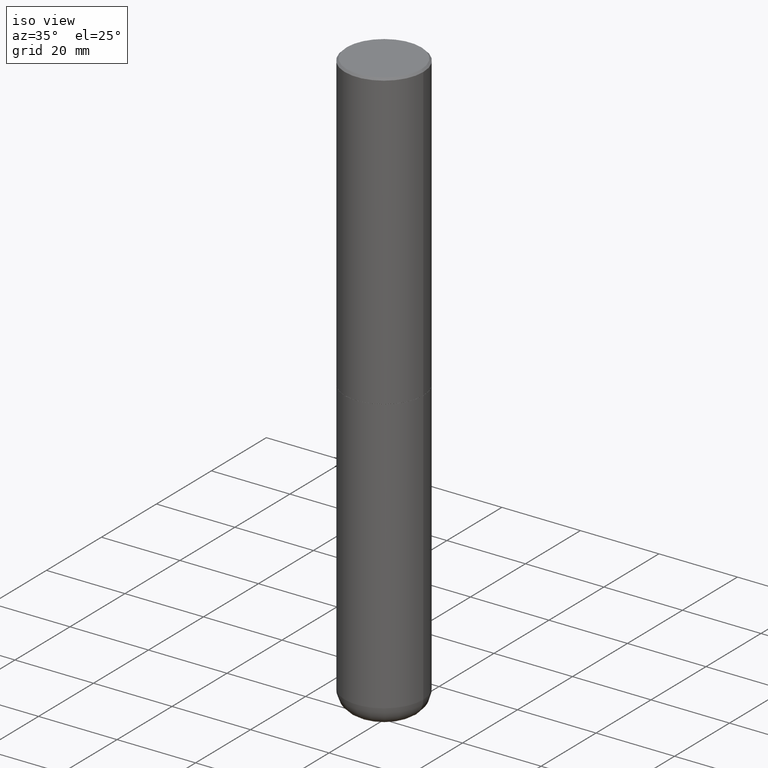
[diagram: clean part render]
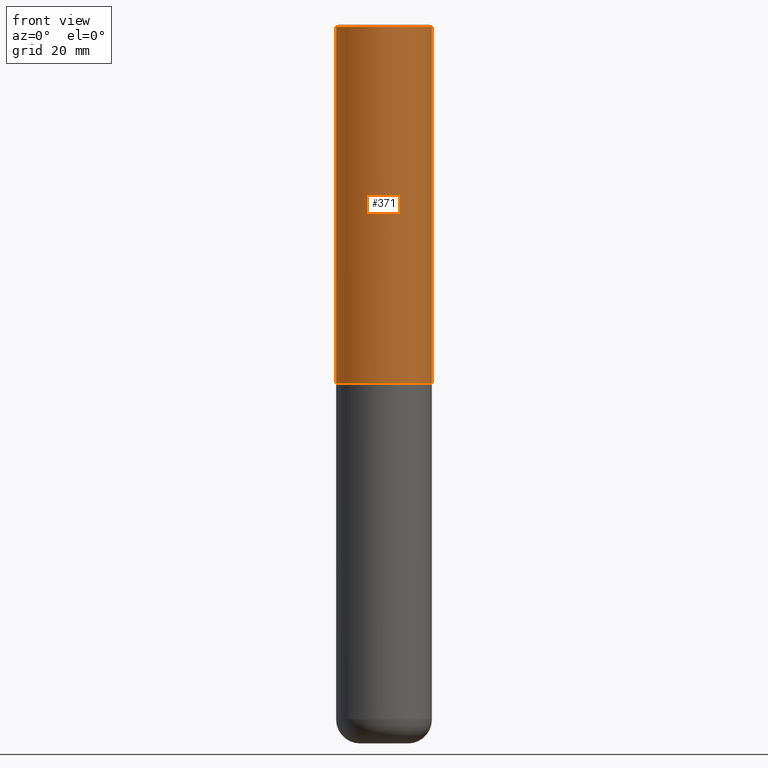
[diagram: tour spotlight — one face highlighted and labeled with its STEP entity id]
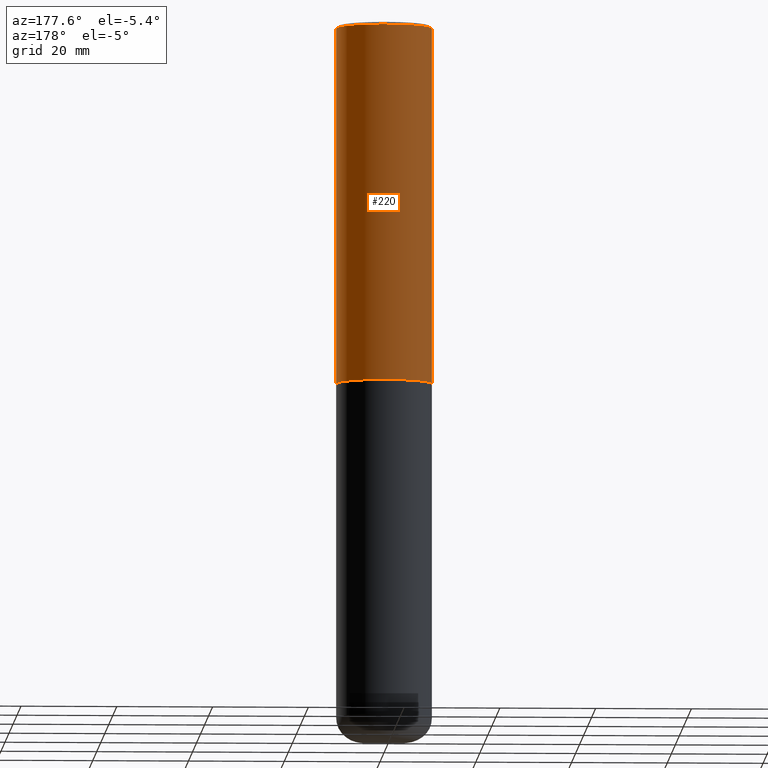
[diagram: tour spotlight — one face highlighted and labeled with its STEP entity id]
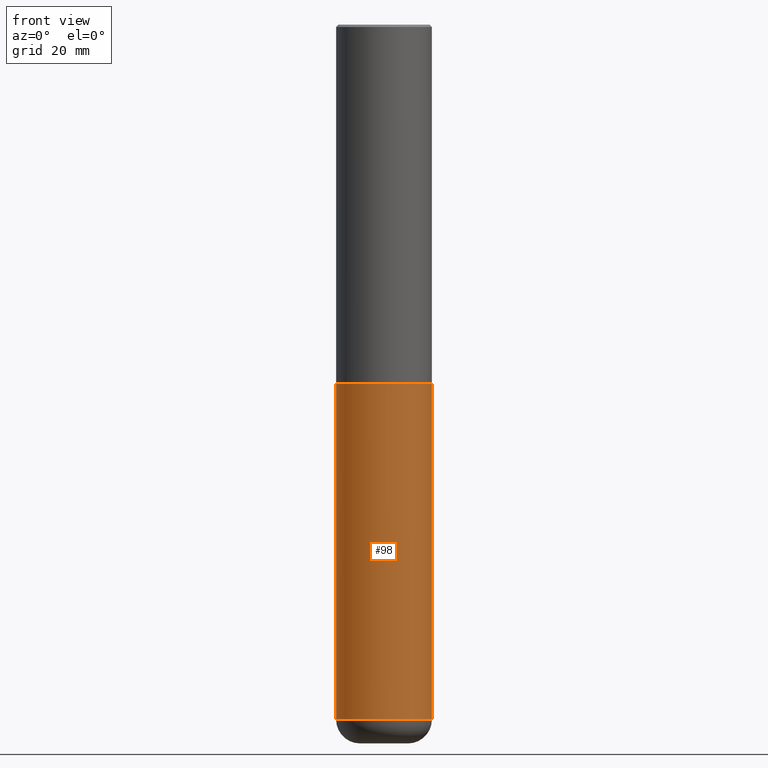
[diagram: tour spotlight — one face highlighted and labeled with its STEP entity id]
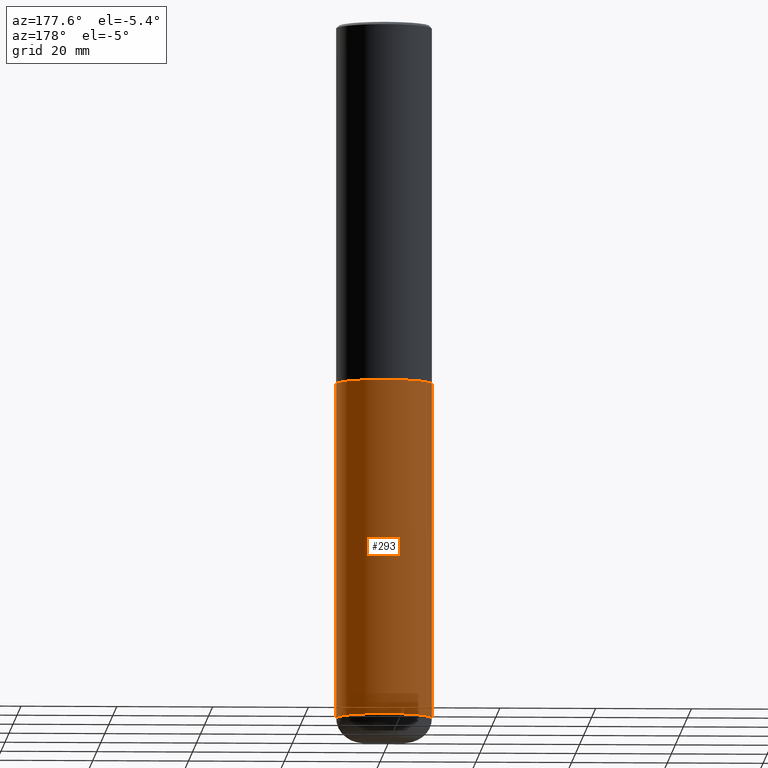
[diagram: tour spotlight — one face highlighted and labeled with its STEP entity id]
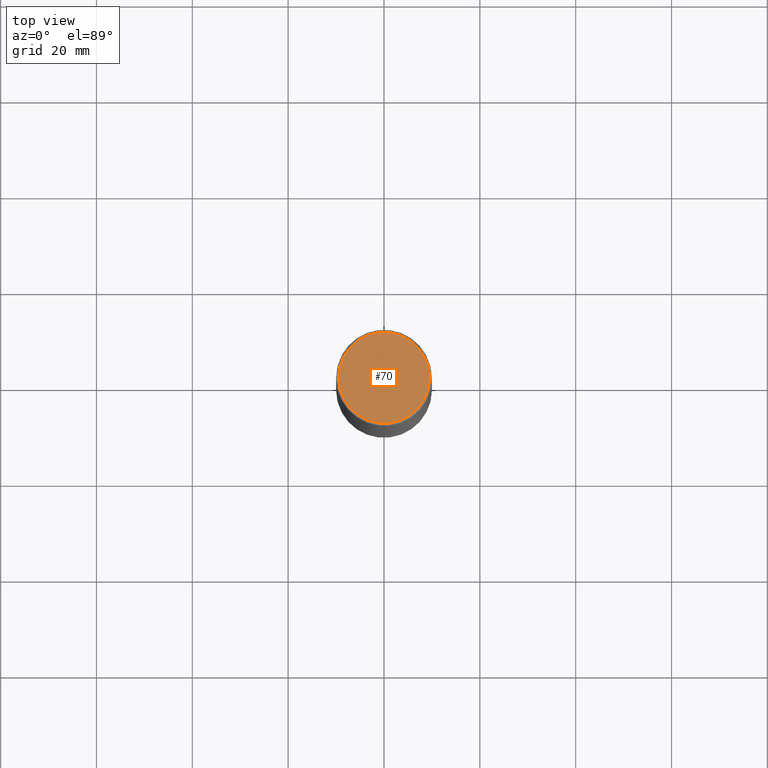
[diagram: tour spotlight — one face highlighted and labeled with its STEP entity id]
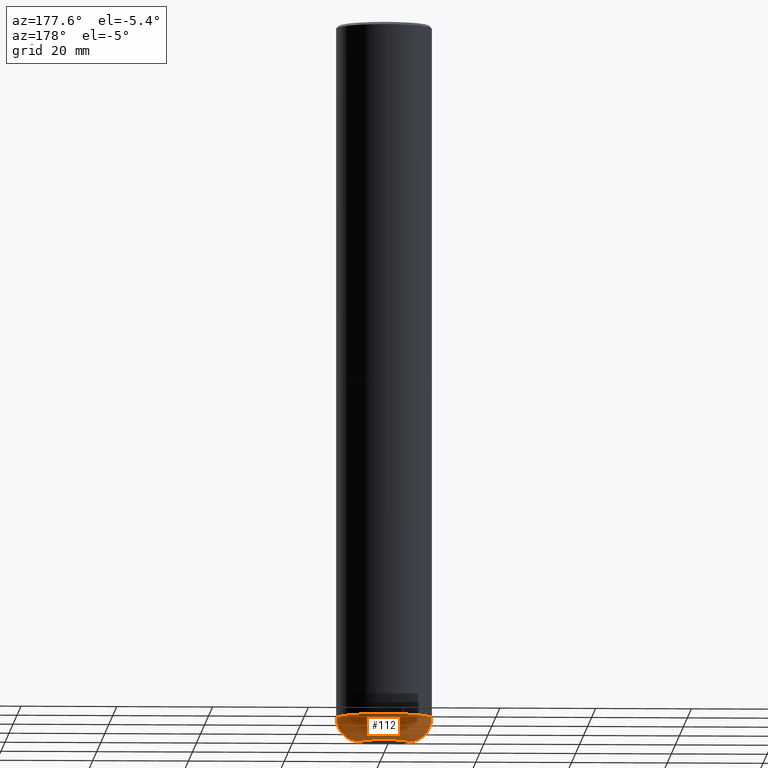
[diagram: tour spotlight — one face highlighted and labeled with its STEP entity id]
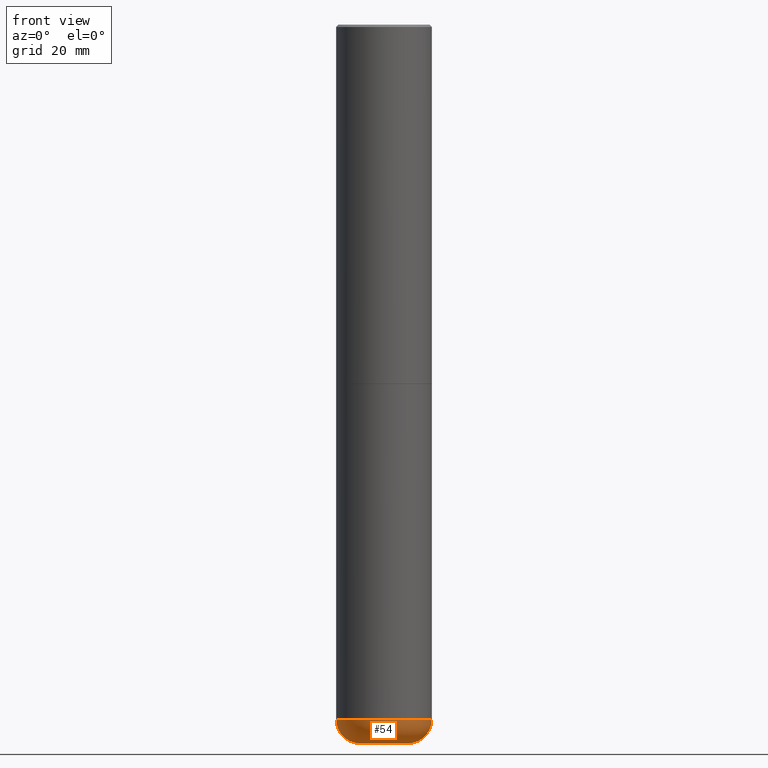
[diagram: tour spotlight — one face highlighted and labeled with its STEP entity id]
A machine part: a face-by-face anatomy tour. The part has 14 B-rep faces; the first image is the clean iso view, then the 7 largest visible faces are spotlighted one at a time (largest first), each with its STEP entity span.

Face 1 — front view, entity #371. In plain terms, the highlighted cylindrical surface (partial cylindrical patch) has radius 10 mm, axis along (-0, 0, 1).
Definition (entity closure, byte-faithful):
#7 = CARTESIAN_POINT ( 'NONE',  ( 4.890937612370294178E-31, -6.982962677686321191E-17, -0.02000000000000008715 ) ) ;
#27 = AXIS2_PLACEMENT_3D ( 'NONE', #106, #74, #196 ) ;
#34 = EDGE_CURVE ( 'NONE', #386, #347, #173, .T. ) ;
#35 = CARTESIAN_POINT ( 'NONE',  ( -0.3937000000000004385, -2.390410796632568923E-15, -2.951700000000000212 ) ) ;
#60 = DIRECTION ( 'NONE',  ( 1.000000000000000000, -6.982962677686265922E-15, 0.000000000000000000 ) ) ;
#74 = DIRECTION ( 'NONE',  ( -2.445468806185136597E-29, 3.491481338843145583E-15, 1.000000000000000000 ) ) ;
#86 = AXIS2_PLACEMENT_3D ( 'NONE', #221, #350, #60 ) ;
#100 = DIRECTION ( 'NONE',  ( 1.000000000000000000, -6.982962677686266711E-15, 0.000000000000000000 ) ) ;
#102 = CARTESIAN_POINT ( 'NONE',  ( 0.3937000000000004385, -1.305499787406839996E-14, -2.951700000000000212 ) ) ;
#103 = VECTOR ( 'NONE', #357, 39.37007874015748143 ) ;
#106 = CARTESIAN_POINT ( 'NONE',  ( 0.000000000000000000, 0.000000000000000000, 0.000000000000000000 ) ) ;
#122 = EDGE_CURVE ( 'NONE', #247, #375, #355, .T. ) ;
#129 = ORIENTED_EDGE ( 'NONE', *, *, #353, .T. ) ;
#137 = DIRECTION ( 'NONE',  ( -2.445468806185136597E-29, 3.491481338843145583E-15, 1.000000000000000000 ) ) ;
#173 = CIRCLE ( 'NONE', #86, 0.3937000000000004385 ) ;
#196 = DIRECTION ( 'NONE',  ( 1.000000000000000000, -6.982962677686266711E-15, 4.876176775795935793E-29 ) ) ;
#200 = CARTESIAN_POINT ( 'NONE',  ( 0.3937000000000001054, -2.770807688499516128E-15, -0.02000000000000008715 ) ) ;
#204 = CARTESIAN_POINT ( 'NONE',  ( -0.3937000000000002164, 2.797406750687515970E-15, -1.936584745033357576E-29 ) ) ;
#221 = CARTESIAN_POINT ( 'NONE',  ( 7.218290275216666916E-29, -1.030580546786331359E-14, -2.951700000000000212 ) ) ;
#233 = CYLINDRICAL_SURFACE ( 'NONE', #27, 0.3937000000000002164 ) ;
#247 = VERTEX_POINT ( 'NONE', #253 ) ;
#253 = CARTESIAN_POINT ( 'NONE',  ( -0.3937000000000001054, 2.679362779428220707E-15, -0.02000000000000008715 ) ) ;
#258 = EDGE_LOOP ( 'NONE', ( #380, #310, #129, #339 ) ) ;
#259 = CARTESIAN_POINT ( 'NONE',  ( 0.3937000000000002164, -2.749192406205084794E-15, 1.919750796630861012E-29 ) ) ;
#294 = LINE ( 'NONE', #204, #395 ) ;
#296 = AXIS2_PLACEMENT_3D ( 'NONE', #7, #137, #100 ) ;
#302 = LINE ( 'NONE', #259, #103 ) ;
#310 = ORIENTED_EDGE ( 'NONE', *, *, #34, .T. ) ;
#339 = ORIENTED_EDGE ( 'NONE', *, *, #122, .F. ) ;
#347 = VERTEX_POINT ( 'NONE', #102 ) ;
#350 = DIRECTION ( 'NONE',  ( -2.445468806185136597E-29, 3.491481338843145583E-15, 1.000000000000000000 ) ) ;
#353 = EDGE_CURVE ( 'NONE', #347, #375, #302, .T. ) ;
#355 = CIRCLE ( 'NONE', #296, 0.3937000000000001054 ) ;
#357 = DIRECTION ( 'NONE',  ( -2.445468806185136877E-29, 3.491481338843145188E-15, 1.000000000000000000 ) ) ;
#359 = DIRECTION ( 'NONE',  ( -2.445468806185136877E-29, 3.491481338843145188E-15, 1.000000000000000000 ) ) ;
#366 = EDGE_CURVE ( 'NONE', #386, #247, #294, .T. ) ;
#371 = ADVANCED_FACE ( 'NONE', ( #417 ), #233, .T. ) ;
#375 = VERTEX_POINT ( 'NONE', #200 ) ;
#380 = ORIENTED_EDGE ( 'NONE', *, *, #366, .F. ) ;
#386 = VERTEX_POINT ( 'NONE', #35 ) ;
#395 = VECTOR ( 'NONE', #359, 39.37007874015748143 ) ;
#417 = FACE_OUTER_BOUND ( 'NONE', #258, .T. ) ;

Face 2 — auxiliary view, entity #220. In plain terms, the highlighted cylindrical surface (partial cylindrical patch) has radius 10 mm, axis along (-0, 0, 1).
Definition (entity closure, byte-faithful):
#3 = AXIS2_PLACEMENT_3D ( 'NONE', #223, #257, #121 ) ;
#4 = DIRECTION ( 'NONE',  ( -2.445468806185136597E-29, 3.491481338843145583E-15, 1.000000000000000000 ) ) ;
#10 = AXIS2_PLACEMENT_3D ( 'NONE', #318, #384, #125 ) ;
#35 = CARTESIAN_POINT ( 'NONE',  ( -0.3937000000000004385, -2.390410796632568923E-15, -2.951700000000000212 ) ) ;
#38 = EDGE_CURVE ( 'NONE', #375, #247, #323, .T. ) ;
#51 = ORIENTED_EDGE ( 'NONE', *, *, #246, .T. ) ;
#90 = AXIS2_PLACEMENT_3D ( 'NONE', #300, #4, #109 ) ;
#102 = CARTESIAN_POINT ( 'NONE',  ( 0.3937000000000004385, -1.305499787406839996E-14, -2.951700000000000212 ) ) ;
#103 = VECTOR ( 'NONE', #357, 39.37007874015748143 ) ;
#109 = DIRECTION ( 'NONE',  ( 1.000000000000000000, -6.982962677686266711E-15, 4.876176775795935793E-29 ) ) ;
#121 = DIRECTION ( 'NONE',  ( 1.000000000000000000, -6.982962677686265922E-15, 0.000000000000000000 ) ) ;
#125 = DIRECTION ( 'NONE',  ( 1.000000000000000000, -6.982962677686266711E-15, 0.000000000000000000 ) ) ;
#174 = CYLINDRICAL_SURFACE ( 'NONE', #90, 0.3937000000000002164 ) ;
#197 = ORIENTED_EDGE ( 'NONE', *, *, #38, .F. ) ;
#200 = CARTESIAN_POINT ( 'NONE',  ( 0.3937000000000001054, -2.770807688499516128E-15, -0.02000000000000008715 ) ) ;
#202 = CIRCLE ( 'NONE', #3, 0.3937000000000004385 ) ;
#204 = CARTESIAN_POINT ( 'NONE',  ( -0.3937000000000002164, 2.797406750687515970E-15, -1.936584745033357576E-29 ) ) ;
#220 = ADVANCED_FACE ( 'NONE', ( #329 ), #174, .T. ) ;
#223 = CARTESIAN_POINT ( 'NONE',  ( 7.218290275216666916E-29, -1.030580546786331359E-14, -2.951700000000000212 ) ) ;
#227 = ORIENTED_EDGE ( 'NONE', *, *, #366, .T. ) ;
#246 = EDGE_CURVE ( 'NONE', #347, #386, #202, .T. ) ;
#247 = VERTEX_POINT ( 'NONE', #253 ) ;
#253 = CARTESIAN_POINT ( 'NONE',  ( -0.3937000000000001054, 2.679362779428220707E-15, -0.02000000000000008715 ) ) ;
#257 = DIRECTION ( 'NONE',  ( -2.445468806185136597E-29, 3.491481338843145583E-15, 1.000000000000000000 ) ) ;
#259 = CARTESIAN_POINT ( 'NONE',  ( 0.3937000000000002164, -2.749192406205084794E-15, 1.919750796630861012E-29 ) ) ;
#275 = ORIENTED_EDGE ( 'NONE', *, *, #353, .F. ) ;
#294 = LINE ( 'NONE', #204, #395 ) ;
#300 = CARTESIAN_POINT ( 'NONE',  ( 0.000000000000000000, 0.000000000000000000, 0.000000000000000000 ) ) ;
#302 = LINE ( 'NONE', #259, #103 ) ;
#318 = CARTESIAN_POINT ( 'NONE',  ( 4.890937612370294178E-31, -6.982962677686321191E-17, -0.02000000000000008715 ) ) ;
#323 = CIRCLE ( 'NONE', #10, 0.3937000000000001054 ) ;
#329 = FACE_OUTER_BOUND ( 'NONE', #373, .T. ) ;
#347 = VERTEX_POINT ( 'NONE', #102 ) ;
#353 = EDGE_CURVE ( 'NONE', #347, #375, #302, .T. ) ;
#357 = DIRECTION ( 'NONE',  ( -2.445468806185136877E-29, 3.491481338843145188E-15, 1.000000000000000000 ) ) ;
#359 = DIRECTION ( 'NONE',  ( -2.445468806185136877E-29, 3.491481338843145188E-15, 1.000000000000000000 ) ) ;
#366 = EDGE_CURVE ( 'NONE', #386, #247, #294, .T. ) ;
#373 = EDGE_LOOP ( 'NONE', ( #51, #227, #197, #275 ) ) ;
#375 = VERTEX_POINT ( 'NONE', #200 ) ;
#384 = DIRECTION ( 'NONE',  ( -2.445468806185136597E-29, 3.491481338843145583E-15, 1.000000000000000000 ) ) ;
#386 = VERTEX_POINT ( 'NONE', #35 ) ;
#395 = VECTOR ( 'NONE', #359, 39.37007874015748143 ) ;

Face 3 — front view, entity #98. In plain terms, the highlighted cylindrical surface (partial cylindrical patch) has radius 10 mm, axis along (-0, 0, 1).
Definition (entity closure, byte-faithful):
#8 = CARTESIAN_POINT ( 'NONE',  ( -0.3937000000000000499, -1.232297690937355006E-14, -2.952700000000000102 ) ) ;
#24 = VERTEX_POINT ( 'NONE', #250 ) ;
#25 = DIRECTION ( 'NONE',  ( 1.000000000000000000, -6.982962677686267499E-15, 0.000000000000000000 ) ) ;
#26 = ORIENTED_EDGE ( 'NONE', *, *, #175, .T. ) ;
#33 = CARTESIAN_POINT ( 'NONE',  ( -0.3937000000000004385, -1.713406362023246068E-14, -5.708599999999999675 ) ) ;
#40 = CARTESIAN_POINT ( 'NONE',  ( 1.396020322698846851E-28, -1.993147037091997783E-14, -5.708599999999999675 ) ) ;
#45 = DIRECTION ( 'NONE',  ( -2.445468806185136597E-29, 3.491481338843145583E-15, 1.000000000000000000 ) ) ;
#76 = FACE_OUTER_BOUND ( 'NONE', #120, .T. ) ;
#98 = ADVANCED_FACE ( 'NONE', ( #76 ), #234, .T. ) ;
#113 = DIRECTION ( 'NONE',  ( -2.445468806185136877E-29, 3.491481338843145188E-15, 1.000000000000000000 ) ) ;
#120 = EDGE_LOOP ( 'NONE', ( #307, #26, #341, #325 ) ) ;
#132 = AXIS2_PLACEMENT_3D ( 'NONE', #208, #45, #272 ) ;
#141 = CARTESIAN_POINT ( 'NONE',  ( 0.3937000000000001054, -2.749192406205084005E-15, 1.919750796630860452E-29 ) ) ;
#153 = LINE ( 'NONE', #274, #190 ) ;
#161 = CARTESIAN_POINT ( 'NONE',  ( 7.220735744022852519E-29, -1.030929694920215502E-14, -2.952700000000000102 ) ) ;
#165 = VECTOR ( 'NONE', #198, 39.37007874015748143 ) ;
#169 = VERTEX_POINT ( 'NONE', #33 ) ;
#170 = DIRECTION ( 'NONE',  ( -2.445468806185136597E-29, 3.491481338843145583E-15, 1.000000000000000000 ) ) ;
#175 = EDGE_CURVE ( 'NONE', #169, #24, #316, .T. ) ;
#190 = VECTOR ( 'NONE', #113, 39.37007874015748143 ) ;
#198 = DIRECTION ( 'NONE',  ( -2.445468806185136877E-29, 3.491481338843145188E-15, 1.000000000000000000 ) ) ;
#208 = CARTESIAN_POINT ( 'NONE',  ( 0.000000000000000000, 0.000000000000000000, 0.000000000000000000 ) ) ;
#229 = EDGE_CURVE ( 'NONE', #169, #352, #153, .T. ) ;
#234 = CYLINDRICAL_SURFACE ( 'NONE', #132, 0.3937000000000001054 ) ;
#236 = LINE ( 'NONE', #141, #165 ) ;
#240 = AXIS2_PLACEMENT_3D ( 'NONE', #40, #170, #336 ) ;
#250 = CARTESIAN_POINT ( 'NONE',  ( 0.3937000000000004385, -2.268066277712506105E-14, -5.708599999999999675 ) ) ;
#272 = DIRECTION ( 'NONE',  ( 1.000000000000000000, -6.982962677686266711E-15, 4.876176775795935793E-29 ) ) ;
#274 = CARTESIAN_POINT ( 'NONE',  ( -0.3937000000000001054, 2.797406750687515181E-15, -1.936584745033357016E-29 ) ) ;
#285 = DIRECTION ( 'NONE',  ( -2.445468806185136597E-29, 3.491481338843145583E-15, 1.000000000000000000 ) ) ;
#299 = CARTESIAN_POINT ( 'NONE',  ( 0.3937000000000000499, -1.305848935540723823E-14, -2.952700000000000102 ) ) ;
#307 = ORIENTED_EDGE ( 'NONE', *, *, #229, .F. ) ;
#308 = AXIS2_PLACEMENT_3D ( 'NONE', #161, #285, #25 ) ;
#315 = EDGE_CURVE ( 'NONE', #352, #406, #337, .T. ) ;
#316 = CIRCLE ( 'NONE', #240, 0.3937000000000001054 ) ;
#325 = ORIENTED_EDGE ( 'NONE', *, *, #315, .F. ) ;
#336 = DIRECTION ( 'NONE',  ( 1.000000000000000000, -6.982962677686266711E-15, 0.000000000000000000 ) ) ;
#337 = CIRCLE ( 'NONE', #308, 0.3937000000000000499 ) ;
#341 = ORIENTED_EDGE ( 'NONE', *, *, #390, .T. ) ;
#352 = VERTEX_POINT ( 'NONE', #8 ) ;
#390 = EDGE_CURVE ( 'NONE', #24, #406, #236, .T. ) ;
#406 = VERTEX_POINT ( 'NONE', #299 ) ;

Face 4 — auxiliary view, entity #293. In plain terms, the highlighted cylindrical surface (partial cylindrical patch) has radius 10 mm, axis along (-0, 0, 1).
Definition (entity closure, byte-faithful):
#8 = CARTESIAN_POINT ( 'NONE',  ( -0.3937000000000000499, -1.232297690937355006E-14, -2.952700000000000102 ) ) ;
#24 = VERTEX_POINT ( 'NONE', #250 ) ;
#33 = CARTESIAN_POINT ( 'NONE',  ( -0.3937000000000004385, -1.713406362023246068E-14, -5.708599999999999675 ) ) ;
#52 = AXIS2_PLACEMENT_3D ( 'NONE', #143, #393, #266 ) ;
#58 = DIRECTION ( 'NONE',  ( -2.445468806185136597E-29, 3.491481338843145583E-15, 1.000000000000000000 ) ) ;
#85 = AXIS2_PLACEMENT_3D ( 'NONE', #407, #351, #219 ) ;
#93 = EDGE_LOOP ( 'NONE', ( #94, #164, #385, #313 ) ) ;
#94 = ORIENTED_EDGE ( 'NONE', *, *, #273, .T. ) ;
#113 = DIRECTION ( 'NONE',  ( -2.445468806185136877E-29, 3.491481338843145188E-15, 1.000000000000000000 ) ) ;
#115 = CIRCLE ( 'NONE', #52, 0.3937000000000000499 ) ;
#131 = EDGE_CURVE ( 'NONE', #406, #352, #115, .T. ) ;
#141 = CARTESIAN_POINT ( 'NONE',  ( 0.3937000000000001054, -2.749192406205084005E-15, 1.919750796630860452E-29 ) ) ;
#143 = CARTESIAN_POINT ( 'NONE',  ( 7.220735744022852519E-29, -1.030929694920215502E-14, -2.952700000000000102 ) ) ;
#153 = LINE ( 'NONE', #274, #190 ) ;
#164 = ORIENTED_EDGE ( 'NONE', *, *, #229, .T. ) ;
#165 = VECTOR ( 'NONE', #198, 39.37007874015748143 ) ;
#169 = VERTEX_POINT ( 'NONE', #33 ) ;
#190 = VECTOR ( 'NONE', #113, 39.37007874015748143 ) ;
#193 = DIRECTION ( 'NONE',  ( 1.000000000000000000, -6.982962677686266711E-15, 4.876176775795935793E-29 ) ) ;
#198 = DIRECTION ( 'NONE',  ( -2.445468806185136877E-29, 3.491481338843145188E-15, 1.000000000000000000 ) ) ;
#219 = DIRECTION ( 'NONE',  ( 1.000000000000000000, -6.982962677686266711E-15, 0.000000000000000000 ) ) ;
#228 = CIRCLE ( 'NONE', #85, 0.3937000000000001054 ) ;
#229 = EDGE_CURVE ( 'NONE', #169, #352, #153, .T. ) ;
#236 = LINE ( 'NONE', #141, #165 ) ;
#250 = CARTESIAN_POINT ( 'NONE',  ( 0.3937000000000004385, -2.268066277712506105E-14, -5.708599999999999675 ) ) ;
#255 = AXIS2_PLACEMENT_3D ( 'NONE', #281, #58, #193 ) ;
#266 = DIRECTION ( 'NONE',  ( 1.000000000000000000, -6.982962677686267499E-15, 0.000000000000000000 ) ) ;
#273 = EDGE_CURVE ( 'NONE', #24, #169, #228, .T. ) ;
#274 = CARTESIAN_POINT ( 'NONE',  ( -0.3937000000000001054, 2.797406750687515181E-15, -1.936584745033357016E-29 ) ) ;
#281 = CARTESIAN_POINT ( 'NONE',  ( 0.000000000000000000, 0.000000000000000000, 0.000000000000000000 ) ) ;
#293 = ADVANCED_FACE ( 'NONE', ( #349 ), #317, .T. ) ;
#299 = CARTESIAN_POINT ( 'NONE',  ( 0.3937000000000000499, -1.305848935540723823E-14, -2.952700000000000102 ) ) ;
#313 = ORIENTED_EDGE ( 'NONE', *, *, #390, .F. ) ;
#317 = CYLINDRICAL_SURFACE ( 'NONE', #255, 0.3937000000000001054 ) ;
#349 = FACE_OUTER_BOUND ( 'NONE', #93, .T. ) ;
#351 = DIRECTION ( 'NONE',  ( -2.445468806185136597E-29, 3.491481338843145583E-15, 1.000000000000000000 ) ) ;
#352 = VERTEX_POINT ( 'NONE', #8 ) ;
#385 = ORIENTED_EDGE ( 'NONE', *, *, #131, .F. ) ;
#390 = EDGE_CURVE ( 'NONE', #24, #406, #236, .T. ) ;
#393 = DIRECTION ( 'NONE',  ( -2.445468806185136597E-29, 3.491481338843145583E-15, 1.000000000000000000 ) ) ;
#406 = VERTEX_POINT ( 'NONE', #299 ) ;
#407 = CARTESIAN_POINT ( 'NONE',  ( 1.396020322698846851E-28, -1.993147037091997783E-14, -5.708599999999999675 ) ) ;

Face 5 — top view, entity #70. In plain terms, the highlighted planar face has unit normal (0, -0, -1).
Definition (entity closure, byte-faithful):
#2 = AXIS2_PLACEMENT_3D ( 'NONE', #68, #172, #134 ) ;
#17 = CIRCLE ( 'NONE', #2, 0.3736999999999997546 ) ;
#29 = FACE_OUTER_BOUND ( 'NONE', #404, .T. ) ;
#36 = CIRCLE ( 'NONE', #370, 0.3736999999999997546 ) ;
#37 = CARTESIAN_POINT ( 'NONE',  ( -7.933270748947670084E-45, 1.132660809489139927E-30, 3.244069492476312449E-16 ) ) ;
#55 = ORIENTED_EDGE ( 'NONE', *, *, #181, .T. ) ;
#68 = CARTESIAN_POINT ( 'NONE',  ( -7.933270748947670084E-45, 1.132660809489139927E-30, 3.244069492476312449E-16 ) ) ;
#70 = ADVANCED_FACE ( 'NONE', ( #29 ), #333, .F. ) ;
#75 = DIRECTION ( 'NONE',  ( -2.445468806185136597E-29, 3.491481338843145583E-15, 1.000000000000000000 ) ) ;
#134 = DIRECTION ( 'NONE',  ( 1.000000000000000000, -6.982962677686266711E-15, 4.869618210878414584E-29 ) ) ;
#139 = CARTESIAN_POINT ( 'NONE',  ( 2.609533152651355831E-15, 0.3736999999999997546, -1.142563101701867026E-15 ) ) ;
#166 = CARTESIAN_POINT ( 'NONE',  ( 0.3736999999999997546, -2.667287895133367570E-15, 3.244069492476496845E-16 ) ) ;
#172 = DIRECTION ( 'NONE',  ( -2.445468806185136597E-29, 3.491481338843145583E-15, 1.000000000000000000 ) ) ;
#181 = EDGE_CURVE ( 'NONE', #379, #288, #36, .T. ) ;
#206 = DIRECTION ( 'NONE',  ( 1.000000000000000000, -6.982962677686266711E-15, 4.869618210878414584E-29 ) ) ;
#230 = DIRECTION ( 'NONE',  ( -1.000000000000000000, 6.982962677686265922E-15, -4.876176775795935793E-29 ) ) ;
#231 = CARTESIAN_POINT ( 'NONE',  ( -0.3736999999999997546, 2.644447966039789058E-15, 3.244069492476128545E-16 ) ) ;
#252 = ORIENTED_EDGE ( 'NONE', *, *, #409, .T. ) ;
#288 = VERTEX_POINT ( 'NONE', #166 ) ;
#301 = DIRECTION ( 'NONE',  ( 2.438088387897960049E-29, -3.491481338843145188E-15, -1.000000000000000000 ) ) ;
#333 = PLANE ( 'NONE',  #348 ) ;
#348 = AXIS2_PLACEMENT_3D ( 'NONE', #139, #301, #230 ) ;
#370 = AXIS2_PLACEMENT_3D ( 'NONE', #37, #75, #206 ) ;
#379 = VERTEX_POINT ( 'NONE', #231 ) ;
#404 = EDGE_LOOP ( 'NONE', ( #55, #252 ) ) ;
#409 = EDGE_CURVE ( 'NONE', #288, #379, #17, .T. ) ;

Face 6 — auxiliary view, entity #112. In plain terms, the highlighted toroidal blend (fillet) surface has major radius 4.9987 mm and minor (blend) radius 5.0013 mm.
Definition (entity closure, byte-faithful):
#1 = CARTESIAN_POINT ( 'NONE',  ( 0.1968000000000000582, -2.199319010150685322E-14, -5.905500000000000860 ) ) ;
#14 = EDGE_LOOP ( 'NONE', ( #291, #399, #356, #155 ) ) ;
#19 = DIRECTION ( 'NONE',  ( -6.982962677686266711E-15, -1.000000000000000000, 3.491481338843145583E-15 ) ) ;
#24 = VERTEX_POINT ( 'NONE', #250 ) ;
#33 = CARTESIAN_POINT ( 'NONE',  ( -0.3937000000000004385, -1.713406362023246068E-14, -5.708599999999999675 ) ) ;
#46 = CIRCLE ( 'NONE', #289, 0.1969000000000007411 ) ;
#48 = EDGE_CURVE ( 'NONE', #278, #169, #215, .T. ) ;
#62 = DIRECTION ( 'NONE',  ( -1.000000000000000000, 7.105427357601006592E-15, 0.000000000000000000 ) ) ;
#69 = CARTESIAN_POINT ( 'NONE',  ( 1.396020322698846851E-28, -1.993147037091997783E-14, -5.708599999999999675 ) ) ;
#85 = AXIS2_PLACEMENT_3D ( 'NONE', #407, #351, #219 ) ;
#112 = ADVANCED_FACE ( 'NONE', ( #361 ), #368, .T. ) ;
#124 = CARTESIAN_POINT ( 'NONE',  ( -0.1968000000000000582, -1.817732928139738743E-14, -5.905500000000000860 ) ) ;
#126 = CIRCLE ( 'NONE', #362, 0.1968000000000000582 ) ;
#155 = ORIENTED_EDGE ( 'NONE', *, *, #287, .F. ) ;
#158 = CARTESIAN_POINT ( 'NONE',  ( 0.1968000000000000305, -2.130571742588863277E-14, -5.708599999999999675 ) ) ;
#169 = VERTEX_POINT ( 'NONE', #33 ) ;
#187 = VERTEX_POINT ( 'NONE', #1 ) ;
#205 = DIRECTION ( 'NONE',  ( 1.000000000000000000, -6.982962677686264344E-15, 4.883557194083112340E-29 ) ) ;
#215 = CIRCLE ( 'NONE', #344, 0.1969000000000007411 ) ;
#219 = DIRECTION ( 'NONE',  ( 1.000000000000000000, -6.982962677686266711E-15, 0.000000000000000000 ) ) ;
#222 = AXIS2_PLACEMENT_3D ( 'NONE', #69, #305, #205 ) ;
#224 = CARTESIAN_POINT ( 'NONE',  ( -0.1968000000000000305, -1.853312226694410005E-14, -5.708599999999999675 ) ) ;
#226 = DIRECTION ( 'NONE',  ( 7.105427357601001859E-15, 1.000000000000000000, -3.491481338843145583E-15 ) ) ;
#228 = CIRCLE ( 'NONE', #85, 0.3937000000000001054 ) ;
#250 = CARTESIAN_POINT ( 'NONE',  ( 0.3937000000000004385, -2.268066277712506105E-14, -5.708599999999999675 ) ) ;
#273 = EDGE_CURVE ( 'NONE', #24, #169, #228, .T. ) ;
#278 = VERTEX_POINT ( 'NONE', #124 ) ;
#283 = DIRECTION ( 'NONE',  ( 1.000000000000000000, -6.982962677686268288E-15, 0.000000000000000000 ) ) ;
#287 = EDGE_CURVE ( 'NONE', #187, #24, #46, .T. ) ;
#289 = AXIS2_PLACEMENT_3D ( 'NONE', #158, #19, #283 ) ;
#291 = ORIENTED_EDGE ( 'NONE', *, *, #342, .T. ) ;
#305 = DIRECTION ( 'NONE',  ( -2.445468806185136597E-29, 3.491481338843145583E-15, 1.000000000000000000 ) ) ;
#328 = DIRECTION ( 'NONE',  ( -2.445468806185136597E-29, 3.491481338843145583E-15, 1.000000000000000000 ) ) ;
#342 = EDGE_CURVE ( 'NONE', #187, #278, #126, .T. ) ;
#344 = AXIS2_PLACEMENT_3D ( 'NONE', #224, #226, #62 ) ;
#351 = DIRECTION ( 'NONE',  ( -2.445468806185136597E-29, 3.491481338843145583E-15, 1.000000000000000000 ) ) ;
#356 = ORIENTED_EDGE ( 'NONE', *, *, #273, .F. ) ;
#361 = FACE_OUTER_BOUND ( 'NONE', #14, .T. ) ;
#362 = AXIS2_PLACEMENT_3D ( 'NONE', #410, #328, #364 ) ;
#364 = DIRECTION ( 'NONE',  ( 1.000000000000000000, -6.982962677686259611E-15, 0.000000000000000000 ) ) ;
#368 = TOROIDAL_SURFACE ( 'NONE', #222, 0.1968000000000000305, 0.1969000000000007133 ) ;
#399 = ORIENTED_EDGE ( 'NONE', *, *, #48, .T. ) ;
#407 = CARTESIAN_POINT ( 'NONE',  ( 1.396020322698846851E-28, -1.993147037091997783E-14, -5.708599999999999675 ) ) ;
#410 = CARTESIAN_POINT ( 'NONE',  ( 1.444171603492632494E-28, -2.061894304653819828E-14, -5.905500000000000860 ) ) ;

Face 7 — front view, entity #54. In plain terms, the highlighted toroidal blend (fillet) surface has major radius 4.9987 mm and minor (blend) radius 5.0013 mm.
Definition (entity closure, byte-faithful):
#1 = CARTESIAN_POINT ( 'NONE',  ( 0.1968000000000000582, -2.199319010150685322E-14, -5.905500000000000860 ) ) ;
#9 = DIRECTION ( 'NONE',  ( -2.445468806185136597E-29, 3.491481338843145583E-15, 1.000000000000000000 ) ) ;
#19 = DIRECTION ( 'NONE',  ( -6.982962677686266711E-15, -1.000000000000000000, 3.491481338843145583E-15 ) ) ;
#21 = EDGE_LOOP ( 'NONE', ( #88, #211, #354, #411 ) ) ;
#24 = VERTEX_POINT ( 'NONE', #250 ) ;
#33 = CARTESIAN_POINT ( 'NONE',  ( -0.3937000000000004385, -1.713406362023246068E-14, -5.708599999999999675 ) ) ;
#40 = CARTESIAN_POINT ( 'NONE',  ( 1.396020322698846851E-28, -1.993147037091997783E-14, -5.708599999999999675 ) ) ;
#46 = CIRCLE ( 'NONE', #289, 0.1969000000000007411 ) ;
#48 = EDGE_CURVE ( 'NONE', #278, #169, #215, .T. ) ;
#54 = ADVANCED_FACE ( 'NONE', ( #195 ), #59, .T. ) ;
#59 = TOROIDAL_SURFACE ( 'NONE', #79, 0.1968000000000000305, 0.1969000000000007133 ) ;
#62 = DIRECTION ( 'NONE',  ( -1.000000000000000000, 7.105427357601006592E-15, 0.000000000000000000 ) ) ;
#79 = AXIS2_PLACEMENT_3D ( 'NONE', #167, #180, #295 ) ;
#88 = ORIENTED_EDGE ( 'NONE', *, *, #48, .F. ) ;
#124 = CARTESIAN_POINT ( 'NONE',  ( -0.1968000000000000582, -1.817732928139738743E-14, -5.905500000000000860 ) ) ;
#158 = CARTESIAN_POINT ( 'NONE',  ( 0.1968000000000000305, -2.130571742588863277E-14, -5.708599999999999675 ) ) ;
#167 = CARTESIAN_POINT ( 'NONE',  ( 1.396020322698846851E-28, -1.993147037091997783E-14, -5.708599999999999675 ) ) ;
#169 = VERTEX_POINT ( 'NONE', #33 ) ;
#170 = DIRECTION ( 'NONE',  ( -2.445468806185136597E-29, 3.491481338843145583E-15, 1.000000000000000000 ) ) ;
#175 = EDGE_CURVE ( 'NONE', #169, #24, #316, .T. ) ;
#180 = DIRECTION ( 'NONE',  ( -2.445468806185136597E-29, 3.491481338843145583E-15, 1.000000000000000000 ) ) ;
#186 = EDGE_CURVE ( 'NONE', #278, #187, #188, .T. ) ;
#187 = VERTEX_POINT ( 'NONE', #1 ) ;
#188 = CIRCLE ( 'NONE', #418, 0.1968000000000000582 ) ;
#195 = FACE_OUTER_BOUND ( 'NONE', #21, .T. ) ;
#201 = CARTESIAN_POINT ( 'NONE',  ( 1.444171603492632494E-28, -2.061894304653819828E-14, -5.905500000000000860 ) ) ;
#211 = ORIENTED_EDGE ( 'NONE', *, *, #186, .T. ) ;
#215 = CIRCLE ( 'NONE', #344, 0.1969000000000007411 ) ;
#224 = CARTESIAN_POINT ( 'NONE',  ( -0.1968000000000000305, -1.853312226694410005E-14, -5.708599999999999675 ) ) ;
#226 = DIRECTION ( 'NONE',  ( 7.105427357601001859E-15, 1.000000000000000000, -3.491481338843145583E-15 ) ) ;
#240 = AXIS2_PLACEMENT_3D ( 'NONE', #40, #170, #336 ) ;
#250 = CARTESIAN_POINT ( 'NONE',  ( 0.3937000000000004385, -2.268066277712506105E-14, -5.708599999999999675 ) ) ;
#278 = VERTEX_POINT ( 'NONE', #124 ) ;
#283 = DIRECTION ( 'NONE',  ( 1.000000000000000000, -6.982962677686268288E-15, 0.000000000000000000 ) ) ;
#287 = EDGE_CURVE ( 'NONE', #187, #24, #46, .T. ) ;
#289 = AXIS2_PLACEMENT_3D ( 'NONE', #158, #19, #283 ) ;
#295 = DIRECTION ( 'NONE',  ( 1.000000000000000000, -6.982962677686264344E-15, 4.883557194083112340E-29 ) ) ;
#316 = CIRCLE ( 'NONE', #240, 0.3937000000000001054 ) ;
#336 = DIRECTION ( 'NONE',  ( 1.000000000000000000, -6.982962677686266711E-15, 0.000000000000000000 ) ) ;
#344 = AXIS2_PLACEMENT_3D ( 'NONE', #224, #226, #62 ) ;
#354 = ORIENTED_EDGE ( 'NONE', *, *, #287, .T. ) ;
#391 = DIRECTION ( 'NONE',  ( 1.000000000000000000, -6.982962677686259611E-15, 0.000000000000000000 ) ) ;
#411 = ORIENTED_EDGE ( 'NONE', *, *, #175, .F. ) ;
#418 = AXIS2_PLACEMENT_3D ( 'NONE', #201, #9, #391 ) ;